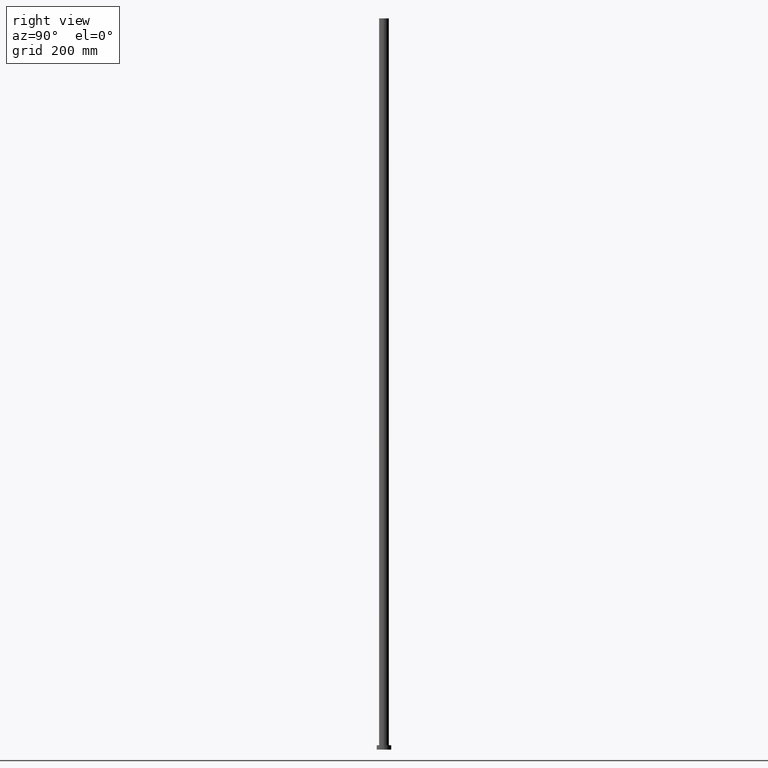
[diagram: clean part render]
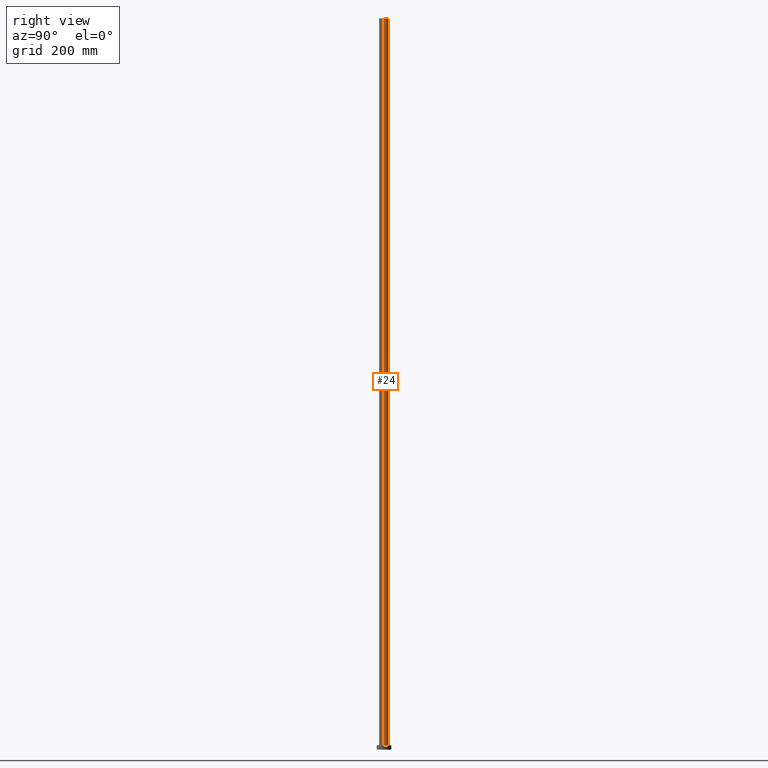
[diagram: same view with one face highlighted and labeled with its STEP entity id]
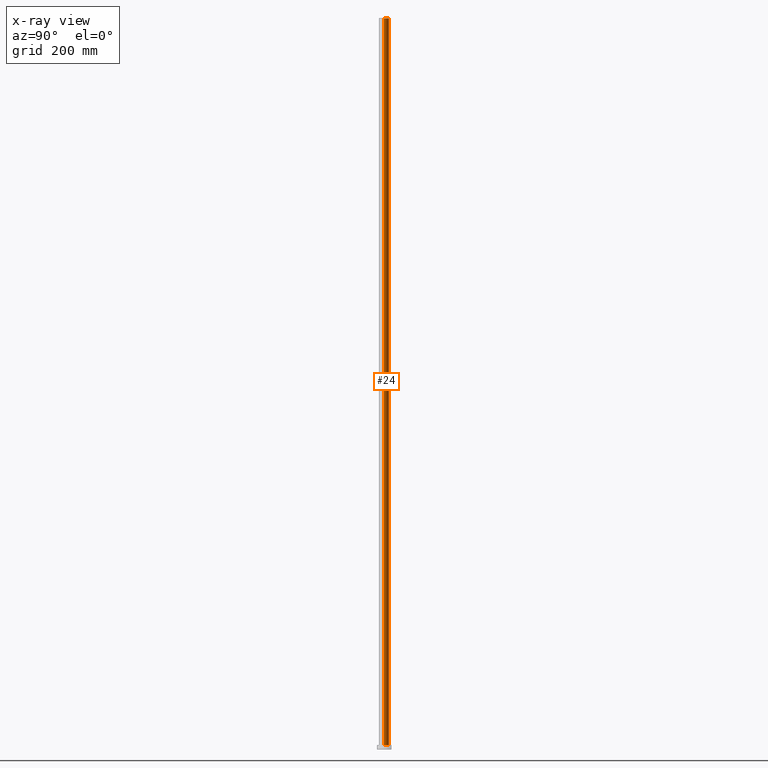
[diagram: x-ray of the same camera — body ghosted, the highlighted face saturated]
A machine part, right view. The second image highlights one B-rep face of the part: STEP entity #24.
The next image is the same camera in x-ray: the body ghosted, the highlighted face saturated — about 0% of this face is hidden behind the body in this view.
In plain terms, the highlighted cylindrical surface (edge-blend (fillet) strip) has radius 8 mm, axis along (-0, -0, -1).
Its self-contained STEP definition (entity closure, byte-faithful):
#1 = CARTESIAN_POINT ( 'NONE',  ( -8.000000000000000000, 0.000000000000000000, 1200.000000000000000 ) ) ;
#5 = CIRCLE ( 'NONE', #88, 8.000000000000000000 ) ;
#10 = ORIENTED_EDGE ( 'NONE', *, *, #216, .F. ) ;
#24 = ADVANCED_FACE ( 'NONE', ( #176 ), #52, .T. ) ;
#36 = LINE ( 'NONE', #110, #252 ) ;
#41 = DIRECTION ( 'NONE',  ( 1.000000000000000000, 0.000000000000000000, 0.000000000000000000 ) ) ;
#43 = VERTEX_POINT ( 'NONE', #185 ) ;
#52 = CYLINDRICAL_SURFACE ( 'NONE', #227, 8.000000000000000000 ) ;
#64 = EDGE_CURVE ( 'NONE', #43, #172, #36, .T. ) ;
#65 = VERTEX_POINT ( 'NONE', #208 ) ;
#77 = CARTESIAN_POINT ( 'NONE',  ( 0.000000000000000000, 0.000000000000000000, 7.000000000000000000 ) ) ;
#80 = LINE ( 'NONE', #1, #196 ) ;
#83 = DIRECTION ( 'NONE',  ( -0.000000000000000000, -0.000000000000000000, -1.000000000000000000 ) ) ;
#88 = AXIS2_PLACEMENT_3D ( 'NONE', #133, #213, #41 ) ;
#100 = EDGE_LOOP ( 'NONE', ( #103, #142, #177, #10 ) ) ;
#103 = ORIENTED_EDGE ( 'NONE', *, *, #243, .F. ) ;
#110 = CARTESIAN_POINT ( 'NONE',  ( 8.000000000000000000, 9.797174393178825657E-16, 1200.000000000000000 ) ) ;
#117 = VERTEX_POINT ( 'NONE', #129 ) ;
#121 = CARTESIAN_POINT ( 'NONE',  ( 0.000000000000000000, 0.000000000000000000, 1200.000000000000000 ) ) ;
#127 = DIRECTION ( 'NONE',  ( -0.000000000000000000, -0.000000000000000000, -1.000000000000000000 ) ) ;
#129 = CARTESIAN_POINT ( 'NONE',  ( -8.000000000000000000, 0.000000000000000000, 1200.000000000000000 ) ) ;
#133 = CARTESIAN_POINT ( 'NONE',  ( 0.000000000000000000, 0.000000000000000000, 1200.000000000000000 ) ) ;
#138 = DIRECTION ( 'NONE',  ( -1.000000000000000000, 0.000000000000000000, 0.000000000000000000 ) ) ;
#142 = ORIENTED_EDGE ( 'NONE', *, *, #64, .T. ) ;
#172 = VERTEX_POINT ( 'NONE', #250 ) ;
#173 = EDGE_CURVE ( 'NONE', #172, #65, #219, .T. ) ;
#176 = FACE_OUTER_BOUND ( 'NONE', #100, .T. ) ;
#177 = ORIENTED_EDGE ( 'NONE', *, *, #173, .T. ) ;
#185 = CARTESIAN_POINT ( 'NONE',  ( 8.000000000000000000, 9.797174393178825657E-16, 1200.000000000000000 ) ) ;
#196 = VECTOR ( 'NONE', #83, 1000.000000000000000 ) ;
#202 = DIRECTION ( 'NONE',  ( -0.000000000000000000, -0.000000000000000000, -1.000000000000000000 ) ) ;
#208 = CARTESIAN_POINT ( 'NONE',  ( -8.000000000000000000, 0.000000000000000000, 7.000000000000000000 ) ) ;
#213 = DIRECTION ( 'NONE',  ( 0.000000000000000000, 0.000000000000000000, 1.000000000000000000 ) ) ;
#216 = EDGE_CURVE ( 'NONE', #117, #65, #80, .T. ) ;
#219 = CIRCLE ( 'NONE', #253, 8.000000000000000000 ) ;
#226 = DIRECTION ( 'NONE',  ( 0.000000000000000000, 0.000000000000000000, 1.000000000000000000 ) ) ;
#227 = AXIS2_PLACEMENT_3D ( 'NONE', #121, #202, #138 ) ;
#230 = DIRECTION ( 'NONE',  ( 1.000000000000000000, 0.000000000000000000, 0.000000000000000000 ) ) ;
#243 = EDGE_CURVE ( 'NONE', #43, #117, #5, .T. ) ;
#250 = CARTESIAN_POINT ( 'NONE',  ( 8.000000000000000000, 9.797174393178825657E-16, 7.000000000000000000 ) ) ;
#252 = VECTOR ( 'NONE', #127, 1000.000000000000000 ) ;
#253 = AXIS2_PLACEMENT_3D ( 'NONE', #77, #226, #230 ) ;